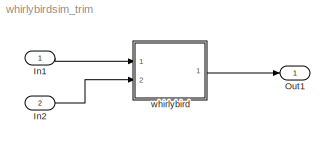
MODEL whirlybirdsim_trim
KIND model
BLOCK [Inport] In1
  IconDisplay = Port number
  OutDataType = fixdt(1, 16)
  OutScaling = 2^0
  SID = 46
BLOCK [Inport] In2
  IconDisplay = Port number
  OutDataType = fixdt(1, 16)
  OutScaling = 2^0
  Port = 2
  SID = 47
BLOCK [Outport] Out1
  IconDisplay = Port number
  OutDataType = fixdt(1, 16)
  OutScaling = 2^0
  SID = 48
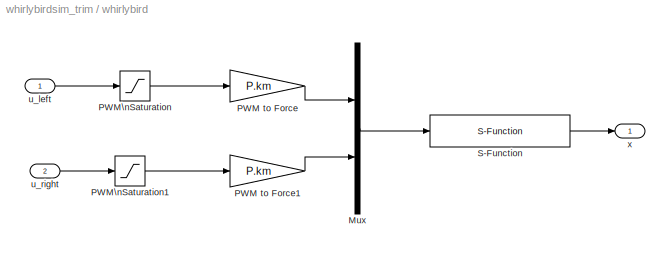
BLOCK [SubSystem] whirlybird
  FunctionWithSeparateData = off
  MaskDisplay = image(imread('whirlybird.jpg'))
  MaskHideContents = off
  MaskIconFrame = on
  MaskIconOpaque = on
  MaskIconRotate = none
  MaskIconUnits = autoscale
  MaskPortRotate = default
  MinAlgLoopOccurrences = off
  Opaque = off
  Ports = [2, 1]
  PropExecContextOutsideSubsystem = off
  RTWSystemCode = Auto
  RequestExecContextInheritance = off
  SID = 35
BLOCK [Mux] whirlybird/Mux
  DisplayOption = bar
  Inputs = 2
  Ports = [2, 1]
  SID = 38
BLOCK [Gain] whirlybird/PWM to Force
  Gain = P.km
  OutDataType = sfix(16)
  OutDataTypeMode = Inherit via internal rule
  OutDataTypeStr = Inherit: Inherit via internal rule
  OutScaling = 2^0
  ParamDataTypeStr = Inherit: Inherit via internal rule
  ParameterDataType = sfix(16)
  ParameterDataTypeMode = Inherit via internal rule
  ParameterScaling = 2^0
  SID = 41
  SaturateOnIntegerOverflow = off
BLOCK [Gain] whirlybird/PWM to Force1
  Gain = P.km
  OutDataType = sfix(16)
  OutDataTypeMode = Inherit via internal rule
  OutDataTypeStr = Inherit: Inherit via internal rule
  OutScaling = 2^0
  ParamDataTypeStr = Inherit: Inherit via internal rule
  ParameterDataType = sfix(16)
  ParameterDataTypeMode = Inherit via internal rule
  ParameterScaling = 2^0
  SID = 42
  SaturateOnIntegerOverflow = off
BLOCK [Saturate] whirlybird/PWM\nSaturation
  LowerLimit = 0
  OutDataType = sfix(16)
  OutScaling = 2^0
  Ports = [1, 1]
  SID = 39
  UpperLimit = 100
BLOCK [Saturate] whirlybird/PWM\nSaturation1
  LowerLimit = 0
  OutDataType = sfix(16)
  OutScaling = 2^0
  Ports = [1, 1]
  SID = 40
  UpperLimit = 100
BLOCK [S-Function] whirlybird/S-Function
  EnableBusSupport = off
  FunctionName = whirlybird_dynamics
  Parameters = P
  Ports = [1, 1]
  SID = 43
BLOCK [Inport] whirlybird/u_left
  IconDisplay = Port number
  SID = 36
BLOCK [Inport] whirlybird/u_right
  IconDisplay = Port number
  Port = 2
  SID = 37
BLOCK [Outport] whirlybird/x
  IconDisplay = Port number
  SID = 44
LINE In1:1 -> whirlybird:1
LINE In2:1 -> whirlybird:2
LINE whirlybird/Mux:1 -> whirlybird/S-Function:1
LINE whirlybird/PWM to Force1:1 -> whirlybird/Mux:2
LINE whirlybird/PWM to Force:1 -> whirlybird/Mux:1
LINE whirlybird/PWM\nSaturation1:1 -> whirlybird/PWM to Force1:1
LINE whirlybird/PWM\nSaturation:1 -> whirlybird/PWM to Force:1
LINE whirlybird/S-Function:1 -> whirlybird/x:1
LINE whirlybird/u_left:1 -> whirlybird/PWM\nSaturation:1
LINE whirlybird/u_right:1 -> whirlybird/PWM\nSaturation1:1
LINE whirlybird:1 -> Out1:1
